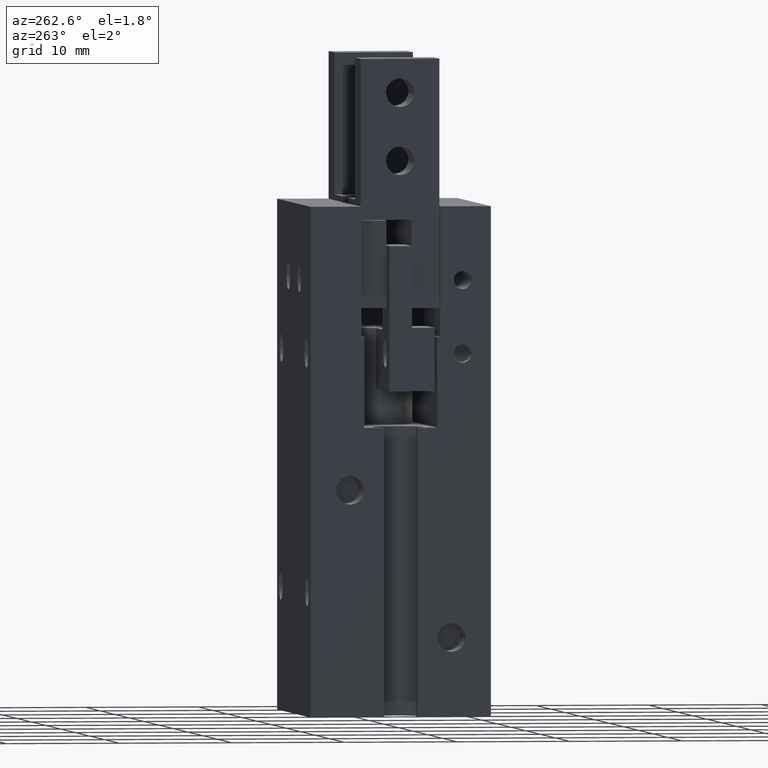
[diagram: clean part render]
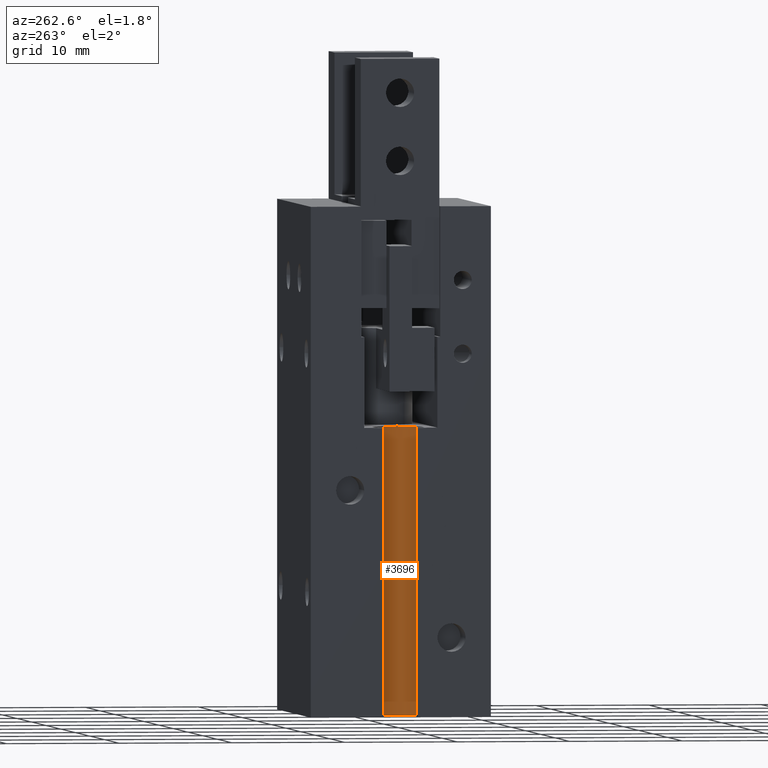
[diagram: same view with one face highlighted and labeled with its STEP entity id]
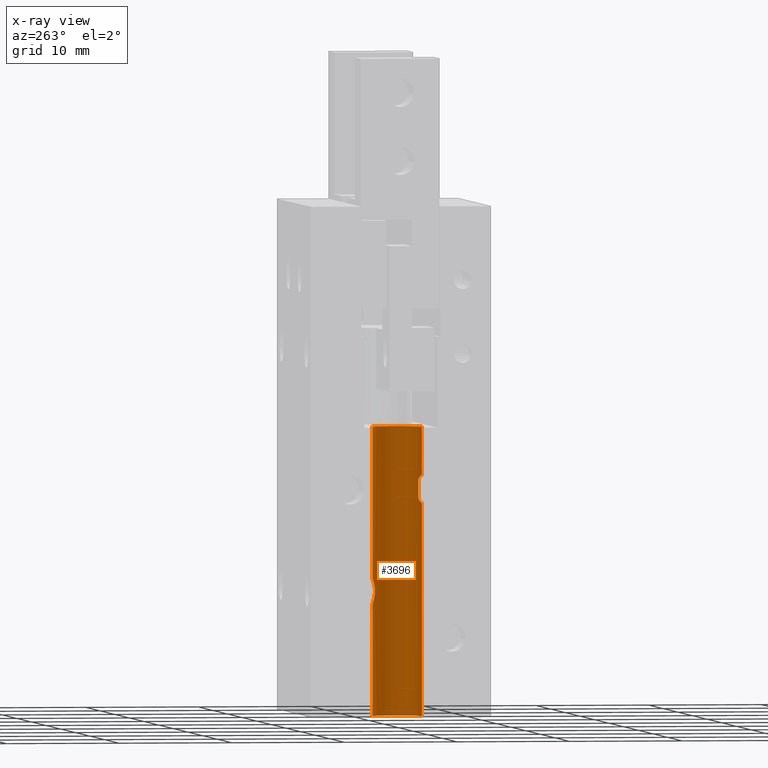
[diagram: x-ray of the same camera — body ghosted, the highlighted face saturated]
A machine part, auxiliary view. The second image highlights one B-rep face of the part: STEP entity #3696.
The next image is the same camera in x-ray: the body ghosted, the highlighted face saturated — about 0% of this face is hidden behind the body in this view.
In plain terms, the highlighted cylindrical surface (edge-blend (fillet) strip) has radius 2.2 mm, axis along (0, 0, 1).
Its self-contained STEP definition (entity closure, byte-faithful):
#1843=CARTESIAN_POINT('',(-8.11611652351702,-2.01463396179067,20.8838834764833)
);
#1844=VERTEX_POINT('Vertex252',#1843);
#1845=CARTESIAN_POINT('',(-8.08348486100971,-1.99999999999997,20.8500000000009)
);
#1846=VERTEX_POINT('Vertex75',#1845);
#1847=CARTESIAN_POINT('',(-8.11611652351702,-2.01463396179067,20.8838834764833)
);
#1848=CARTESIAN_POINT('',(-8.1051020645239,-2.00980157114747,20.8728690174902)
);
#1849=CARTESIAN_POINT('',(-8.0942287453285,-2.0049139613282,20.8615621250347));
#1850=CARTESIAN_POINT('',(-8.08348486100971,-1.99999999999997,20.8500000000009)
);
#1851=B_SPLINE_CURVE_WITH_KNOTS('nurbsCrv666',3,(#1847,#1848,#1849,#1850),
.UNSPECIFIED.,.F.,.F.,(4,4),(2.90091704375445,2.94984451577548),.UNSPECIFIED.);
#1852=EDGE_CURVE('Edge377',#1844,#1846,#1851,.T.);
#1854=CARTESIAN_POINT('',(-8.08348486100877,-1.99999999999997,19.1500000000004)
);
#1855=VERTEX_POINT('Vertex73',#1854);
#1863=CARTESIAN_POINT('',(-9.,-2.19999999999999,18.7500000000002));
#1864=VERTEX_POINT('Vertex72',#1863);
#1865=CARTESIAN_POINT('',(-8.08348486100877,-1.99999999999997,19.1500000000004)
);
#1866=CARTESIAN_POINT('',(-8.09422874532836,-2.00491396132813,19.1384378749657)
);
#1867=CARTESIAN_POINT('',(-8.10510206452382,-2.00980157114744,19.1271309825102)
);
#1868=CARTESIAN_POINT('',(-8.22477768314008,-2.06230704054734,19.0074553638939)
);
#1869=CARTESIAN_POINT('',(-8.36288597947021,-2.11159942889259,18.9117426526566)
);
#1870=CARTESIAN_POINT('',(-8.59317273381096,-2.16348866211667,18.8151281960916)
);
#1871=CARTESIAN_POINT('',(-8.673748261494,-2.17722317545831,18.790461826934));
#1872=CARTESIAN_POINT('',(-8.83693632146645,-2.19548427218181,18.757891701275)
);
#1873=CARTESIAN_POINT('',(-8.91955247415352,-2.20000000000001,18.7500000000002)
);
#1874=CARTESIAN_POINT('',(-9.,-2.19999999999999,18.7500000000002));
#1875=B_SPLINE_CURVE_WITH_KNOTS('nurbsCrv92',3,(#1865,#1866,#1867,#1868,#1869,
#1870,#1871,#1872,#1873,#1874),.UNSPECIFIED.,.F.,.F.,(4,2,2,2,4),(
4.79234241860236,4.84126989062358,5.32395504570359,5.56529762324359,
5.8066402007836),.UNSPECIFIED.);
#1876=EDGE_CURVE('Edge92',#1855,#1864,#1875,.T.);
#1878=CARTESIAN_POINT('',(-9.,-2.19999999999999,21.2500000000001));
#1879=VERTEX_POINT('Vertex74',#1878);
#1887=CARTESIAN_POINT('',(-9.,-2.19999999999999,21.2500000000001));
#1888=CARTESIAN_POINT('',(-8.91955247415352,-2.20000000000001,21.2500000000001)
);
#1889=CARTESIAN_POINT('',(-8.83693632146645,-2.19548427218181,21.2421082987253)
);
#1890=CARTESIAN_POINT('',(-8.67374826149401,-2.17722317545831,21.2095381730663)
);
#1891=CARTESIAN_POINT('',(-8.59317273381097,-2.16348866211667,21.1848718039087)
);
#1892=CARTESIAN_POINT('',(-8.36288597947022,-2.11159942889259,21.0882573473437)
);
#1893=CARTESIAN_POINT('',(-8.22477768314009,-2.06230704054734,20.9925446361064)
);
#1894=CARTESIAN_POINT('',(-8.11611652351702,-2.01463396179067,20.8838834764833)
);
#1895=B_SPLINE_CURVE_WITH_KNOTS('nurbsCrv665',3,(#1887,#1888,#1889,#1890,#1891,
#1892,#1893,#1894),.UNSPECIFIED.,.F.,.F.,(4,2,2,4),(1.93554673359456,
2.17688931113456,2.41823188867457,2.90091704375445),.UNSPECIFIED.);
#1896=EDGE_CURVE('Edge376',#1879,#1844,#1895,.T.);
#1962=CARTESIAN_POINT('',(-9.,-2.19999999999999,-5.5107285922007E-016));
#1963=VERTEX_POINT('Vertex82',#1962);
#1970=CARTESIAN_POINT('',(-9.,2.19999999999999,-5.5107285922007E-016));
#1971=VERTEX_POINT('Vertex83',#1970);
#1972=CARTESIAN_POINT('',(-8.99999999999999,-1.66533453693773E-016,0.));
#1973=DIRECTION('',(0.,0.,1.));
#1974=DIRECTION('',(-6.45947941600094E-015,-1.,0.));
#1975=AXIS2_PLACEMENT_3D('',#1972,#1973,#1974);
#1976=CIRCLE('nurbsCrv102',#1975,2.19999999999999);
#1977=EDGE_CURVE('Edge102',#1963,#1971,#1976,.T.);
#2911=CARTESIAN_POINT('',(-7.75,1.81038669902317,11.));
#2912=VERTEX_POINT('Vertex270',#2911);
#2913=CARTESIAN_POINT('',(-9.,2.19999999999999,12.25));
#2914=VERTEX_POINT('Vertex140',#2913);
#2915=CARTESIAN_POINT('',(-7.75,1.81038669902317,11.));
#2916=CARTESIAN_POINT('',(-7.75,1.81038669902317,11.0808480352862));
#2917=CARTESIAN_POINT('',(-7.75796308544156,1.81596530435049,11.1635850275571)
);
#2918=CARTESIAN_POINT('',(-7.7905796888123,1.83784879468863,11.3266776268814));
#2919=CARTESIAN_POINT('',(-7.81521734392067,1.85410693874322,11.4070426740641)
);
#2920=CARTESIAN_POINT('',(-7.9115857401303,1.91338529707961,11.6367341718154));
#2921=CARTESIAN_POINT('',(-8.00691439237619,1.96672354176264,11.7746813453426)
);
#2922=CARTESIAN_POINT('',(-8.22477768313989,2.06230704054726,11.9925446361063)
);
#2923=CARTESIAN_POINT('',(-8.36288597947001,2.11159942889253,12.0882573473436)
);
#2924=CARTESIAN_POINT('',(-8.59317273381077,2.16348866211663,12.1848718039085)
);
#2925=CARTESIAN_POINT('',(-8.67374826149381,2.17722317545828,12.2095381730662)
);
#2926=CARTESIAN_POINT('',(-8.83693632146626,2.1954842721818,12.2421082987252));
#2927=CARTESIAN_POINT('',(-8.91955247415333,2.2,12.25));
#2928=CARTESIAN_POINT('',(-9.,2.19999999999999,12.25));
#2929=B_SPLINE_CURVE_WITH_KNOTS('nurbsCrv892',3,(#2915,#2916,#2917,#2918,#2919,
#2920,#2921,#2922,#2923,#2924,#2925,#2926,#2927,#2928),.UNSPECIFIED.,.F.,.F.,(4
,2,2,2,2,2,4),(1.33226762955019E-015,0.242544105858632,0.485088211717264,
0.970176423434529,1.45286157851455,1.69420415605456,1.93554673359457),
.UNSPECIFIED.);
#2930=EDGE_CURVE('Edge423',#2912,#2914,#2929,.T.);
#2932=CARTESIAN_POINT('',(-9.,2.19999999999999,9.75));
#2933=VERTEX_POINT('Vertex139',#2932);
#2941=CARTESIAN_POINT('',(-9.,2.19999999999999,9.75));
#2942=CARTESIAN_POINT('',(-8.91955247415333,2.2,9.75));
#2943=CARTESIAN_POINT('',(-8.83693632146626,2.1954842721818,9.75789170127481));
#2944=CARTESIAN_POINT('',(-8.67374826149381,2.17722317545828,9.79046182693383)
);
#2945=CARTESIAN_POINT('',(-8.59317273381077,2.16348866211663,9.81512819609146)
);
#2946=CARTESIAN_POINT('',(-8.36288597947002,2.11159942889253,9.9117426526564));
#2947=CARTESIAN_POINT('',(-8.22477768313989,2.06230704054726,10.0074553638937)
);
#2948=CARTESIAN_POINT('',(-8.00691439237619,1.96672354176264,10.2253186546574)
);
#2949=CARTESIAN_POINT('',(-7.9115857401303,1.91338529707961,10.3632658281846));
#2950=CARTESIAN_POINT('',(-7.81521734392067,1.85410693874322,10.5929573259359)
);
#2951=CARTESIAN_POINT('',(-7.7905796888123,1.83784879468863,10.6733223731186));
#2952=CARTESIAN_POINT('',(-7.75796308544156,1.81596530435049,10.8364149724429)
);
#2953=CARTESIAN_POINT('',(-7.75,1.81038669902317,10.9191519647138));
#2954=CARTESIAN_POINT('',(-7.75,1.81038669902317,11.));
#2955=B_SPLINE_CURVE_WITH_KNOTS('nurbsCrv891',3,(#2941,#2942,#2943,#2944,#2945,
#2946,#2947,#2948,#2949,#2950,#2951,#2952,#2953,#2954),.UNSPECIFIED.,.F.,.F.,(4
,2,2,2,2,2,4),(-1.93554673359457,-1.69420415605456,-1.45286157851455,
-0.970176423434529,-0.485088211717264,-0.242544105858633,1.33226762955019E-015)
,.UNSPECIFIED.);
#2956=EDGE_CURVE('Edge422',#2933,#2912,#2955,.T.);
#3217=CARTESIAN_POINT('',(-8.08348486100924,-1.99999999999997,20.0000000000006)
);
#3218=DIRECTION('',(5.52760451789701E-013,3.91843420455837E-016,-1.));
#3219=VECTOR('',#3218,1.);
#3220=LINE('nurbsCrv176',#3217,#3219);
#3221=EDGE_CURVE('Edge176',#1846,#1855,#3220,.T.);
#3629=CARTESIAN_POINT('',(-9.,2.19999999999999,4.875));
#3630=DIRECTION('',(0.,-4.55476112666731E-017,1.));
#3631=VECTOR('',#3630,1.);
#3632=LINE('nurbsCrv202',#3629,#3631);
#3633=EDGE_CURVE('Edge202',#1971,#2933,#3632,.T.);
#3636=CARTESIAN_POINT('',(-9.,2.19999999999999,25.5));
#3637=VERTEX_POINT('Vertex165',#3636);
#3638=CARTESIAN_POINT('',(-9.,2.19999999999999,18.875));
#3639=DIRECTION('',(0.,3.35161667811368E-017,1.));
#3640=VECTOR('',#3639,1.);
#3641=LINE('nurbsCrv203',#3638,#3640);
#3642=EDGE_CURVE('Edge203',#2914,#3637,#3641,.T.);
#3659=ORIENTED_EDGE('Edgeuse353',*,*,#1977,.F.);
#3660=CARTESIAN_POINT('',(-9.,-2.19999999999999,9.37500000000008));
#3661=DIRECTION('',(9.47390314346792E-017,0.,1.));
#3662=VECTOR('',#3661,1.);
#3663=LINE('nurbsCrv205',#3660,#3662);
#3664=EDGE_CURVE('Edge205',#1963,#1864,#3663,.T.);
#3665=ORIENTED_EDGE('Edgeuse354',*,*,#3664,.T.);
#3666=ORIENTED_EDGE('Edgeuse355',*,*,#1876,.F.);
#3667=ORIENTED_EDGE('Edgeuse356',*,*,#3221,.F.);
#3668=ORIENTED_EDGE('Edgeuse754',*,*,#1852,.F.);
#3669=ORIENTED_EDGE('Edgeuse752',*,*,#1896,.F.);
#3670=CARTESIAN_POINT('',(-9.,-2.19999999999999,25.5));
#3671=VERTEX_POINT('Vertex166',#3670);
#3672=CARTESIAN_POINT('',(-9.,-2.19999999999999,23.3750000000001));
#3673=DIRECTION('',(-4.17966315153012E-016,0.,1.));
#3674=VECTOR('',#3673,1.);
#3675=LINE('nurbsCrv206',#3672,#3674);
#3676=EDGE_CURVE('Edge206',#1879,#3671,#3675,.T.);
#3677=ORIENTED_EDGE('Edgeuse358',*,*,#3676,.T.);
#3678=CARTESIAN_POINT('',(-8.99999999999999,1.66533453693773E-016,25.5));
#3679=DIRECTION('',(-1.61486985400022E-015,-1.61486985400023E-015,-1.));
#3680=DIRECTION('',(-6.45947941600094E-015,1.,-1.61486985400024E-015));
#3681=AXIS2_PLACEMENT_3D('',#3678,#3679,#3680);
#3682=CIRCLE('nurbsCrv207',#3681,2.19999999999999);
#3683=EDGE_CURVE('Edge207',#3637,#3671,#3682,.T.);
#3684=ORIENTED_EDGE('Edgeuse359',*,*,#3683,.F.);
#3685=ORIENTED_EDGE('Edgeuse360',*,*,#3642,.F.);
#3686=ORIENTED_EDGE('Edgeuse846',*,*,#2930,.F.);
#3687=ORIENTED_EDGE('Edgeuse844',*,*,#2956,.F.);
#3688=ORIENTED_EDGE('Edgeuse362',*,*,#3633,.F.);
#3689=EDGE_LOOP('',(#3659,#3665,#3666,#3667,#3668,#3669,#3677,#3684,#3685,#3686
,#3687,#3688));
#3690=FACE_OUTER_BOUND('',#3689,.T.);
#3691=CARTESIAN_POINT('',(-9.,-8.32667268468867E-017,-1.275));
#3692=DIRECTION('',(0.,0.,1.));
#3693=DIRECTION('',(-1.,8.32667268468867E-017,0.));
#3694=AXIS2_PLACEMENT_3D('',#3691,#3692,#3693);
#3695=CYLINDRICAL_SURFACE('nurbsSrf83',#3694,2.2);
#3696=ADVANCED_FACE('Face83',(#3690),#3695,.F.);